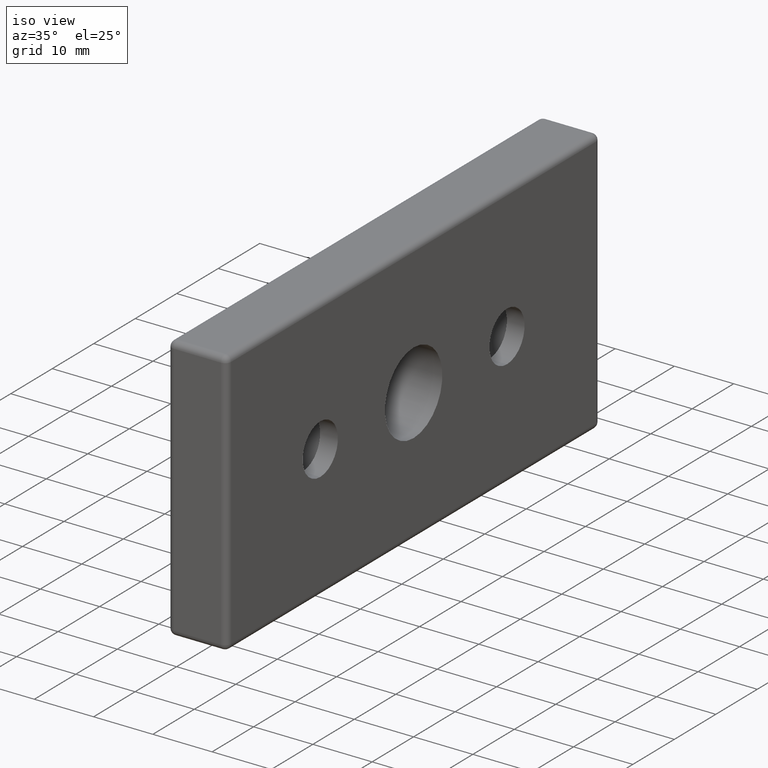
[diagram: clean part render]
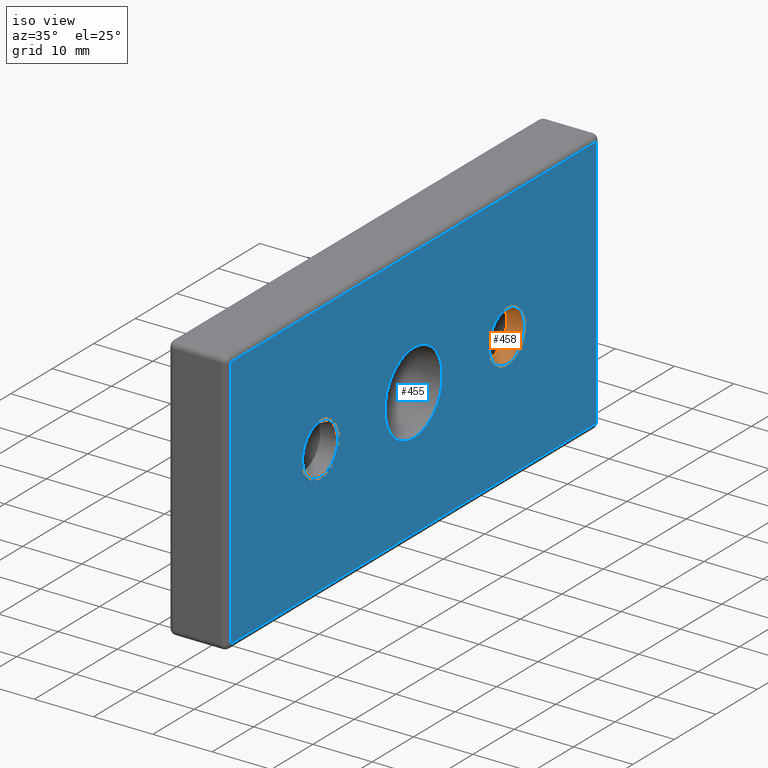
[diagram: same view with the hole feature highlighted: cylindrical wall and planar end face, labeled with their STEP entity ids]
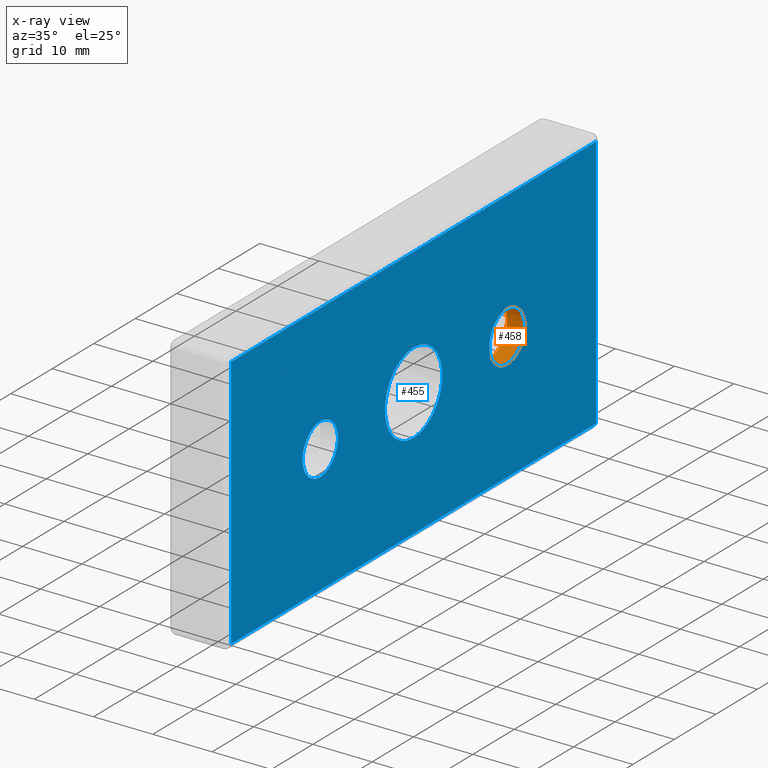
[diagram: x-ray of the same camera — body ghosted, the hole faces saturated]
A machine part, iso view. The highlighted faces form one hole feature of diameter 8.5 mm: the cylindrical wall (entity #458, orange) and its adjacent planar end face (entity #455, blue) — they share a circular edge in the B-rep.
The next image is the same camera in x-ray (body ghosted, the hole faces saturated) — the bore reads through the body.
Wall:
#23=FACE_BOUND('',#171,.T.);
#97=CYLINDRICAL_SURFACE('',#525,4.25);
#129=FACE_OUTER_BOUND('',#170,.T.);
#170=EDGE_LOOP('',(#412));
#171=EDGE_LOOP('',(#413));
#209=CIRCLE('',#520,4.25);
#211=CIRCLE('',#523,4.25);
#243=VERTEX_POINT('',#801);
#245=VERTEX_POINT('',#806);
#301=EDGE_CURVE('',#243,#243,#209,.T.);
#303=EDGE_CURVE('',#245,#245,#211,.T.);
#412=ORIENTED_EDGE('',*,*,#301,.F.);
#413=ORIENTED_EDGE('',*,*,#303,.T.);
#458=ADVANCED_FACE('',(#129,#23),#97,.F.);
#520=AXIS2_PLACEMENT_3D('',#802,#668,#669);
#523=AXIS2_PLACEMENT_3D('',#807,#674,#675);
#525=AXIS2_PLACEMENT_3D('',#809,#678,#679);
#668=DIRECTION('center_axis',(-1.,0.,0.));
#669=DIRECTION('ref_axis',(0.,0.,1.));
#674=DIRECTION('center_axis',(-1.,0.,0.));
#675=DIRECTION('ref_axis',(0.,0.,1.));
#678=DIRECTION('center_axis',(-1.,0.,0.));
#679=DIRECTION('ref_axis',(0.,0.,1.));
#801=CARTESIAN_POINT('',(5.,22.5,-4.25));
#802=CARTESIAN_POINT('Origin',(5.,22.5,0.));
#806=CARTESIAN_POINT('',(1.99999999999999,22.5,-4.25));
#807=CARTESIAN_POINT('Origin',(1.99999999999999,22.5,0.));
#809=CARTESIAN_POINT('Origin',(96.1187420807834,22.5,0.));
End face:
#18=FACE_BOUND('',#163,.T.);
#19=FACE_BOUND('',#164,.T.);
#20=FACE_BOUND('',#165,.T.);
#33=PLANE('',#517);
#52=LINE('',#774,#76);
#54=LINE('',#777,#78);
#56=LINE('',#780,#80);
#58=LINE('',#783,#82);
#76=VECTOR('',#632,43.);
#78=VECTOR('',#636,88.);
#80=VECTOR('',#640,43.);
#82=VECTOR('',#644,88.);
#126=FACE_OUTER_BOUND('',#162,.T.);
#162=EDGE_LOOP('',(#401,#402,#403,#404));
#163=EDGE_LOOP('',(#405));
#164=EDGE_LOOP('',(#406));
#165=EDGE_LOOP('',(#407));
#207=CIRCLE('',#518,6.9175);
#208=CIRCLE('',#519,4.25);
#209=CIRCLE('',#520,4.25);
#215=VERTEX_POINT('',#695);
#218=VERTEX_POINT('',#702);
#221=VERTEX_POINT('',#709);
#227=VERTEX_POINT('',#726);
#241=VERTEX_POINT('',#797);
#242=VERTEX_POINT('',#799);
#243=VERTEX_POINT('',#801);
#288=EDGE_CURVE('',#218,#227,#52,.T.);
#290=EDGE_CURVE('',#227,#221,#54,.T.);
#292=EDGE_CURVE('',#221,#215,#56,.T.);
#294=EDGE_CURVE('',#215,#218,#58,.T.);
#299=EDGE_CURVE('',#241,#241,#207,.T.);
#300=EDGE_CURVE('',#242,#242,#208,.T.);
#301=EDGE_CURVE('',#243,#243,#209,.T.);
#401=ORIENTED_EDGE('',*,*,#288,.F.);
#402=ORIENTED_EDGE('',*,*,#294,.F.);
#403=ORIENTED_EDGE('',*,*,#292,.F.);
#404=ORIENTED_EDGE('',*,*,#290,.F.);
#405=ORIENTED_EDGE('',*,*,#299,.T.);
#406=ORIENTED_EDGE('',*,*,#300,.T.);
#407=ORIENTED_EDGE('',*,*,#301,.T.);
#455=ADVANCED_FACE('',(#126,#18,#19,#20),#33,.T.);
#517=AXIS2_PLACEMENT_3D('',#796,#662,#663);
#518=AXIS2_PLACEMENT_3D('',#798,#664,#665);
#519=AXIS2_PLACEMENT_3D('',#800,#666,#667);
#520=AXIS2_PLACEMENT_3D('',#802,#668,#669);
#632=DIRECTION('',(0.,0.,1.));
#636=DIRECTION('',(0.,1.,0.));
#640=DIRECTION('',(0.,0.,-1.));
#644=DIRECTION('',(0.,-1.,0.));
#662=DIRECTION('center_axis',(1.,0.,0.));
#663=DIRECTION('ref_axis',(0.,0.,-1.));
#664=DIRECTION('center_axis',(-1.,0.,0.));
#665=DIRECTION('ref_axis',(0.,0.,1.));
#666=DIRECTION('center_axis',(-1.,0.,0.));
#667=DIRECTION('ref_axis',(0.,0.,1.));
#668=DIRECTION('center_axis',(-1.,0.,0.));
#669=DIRECTION('ref_axis',(0.,0.,1.));
#695=CARTESIAN_POINT('',(5.,44.,-21.5));
#702=CARTESIAN_POINT('',(5.,-44.,-21.5));
#709=CARTESIAN_POINT('',(5.,44.,21.5));
#726=CARTESIAN_POINT('',(5.,-44.,21.5));
#774=CARTESIAN_POINT('',(5.,-44.,11.25));
#777=CARTESIAN_POINT('',(5.,22.5,21.5));
#780=CARTESIAN_POINT('',(5.,44.,-11.25));
#783=CARTESIAN_POINT('',(5.,-22.5,-21.5));
#796=CARTESIAN_POINT('Origin',(5.,0.,0.));
#797=CARTESIAN_POINT('',(5.,-8.47149423310182E-16,-6.9175));
#798=CARTESIAN_POINT('Origin',(5.,0.,0.));
#799=CARTESIAN_POINT('',(5.,-22.5,-4.25));
#800=CARTESIAN_POINT('Origin',(5.,-22.5,0.));
#801=CARTESIAN_POINT('',(5.,22.5,-4.25));
#802=CARTESIAN_POINT('Origin',(5.,22.5,0.));